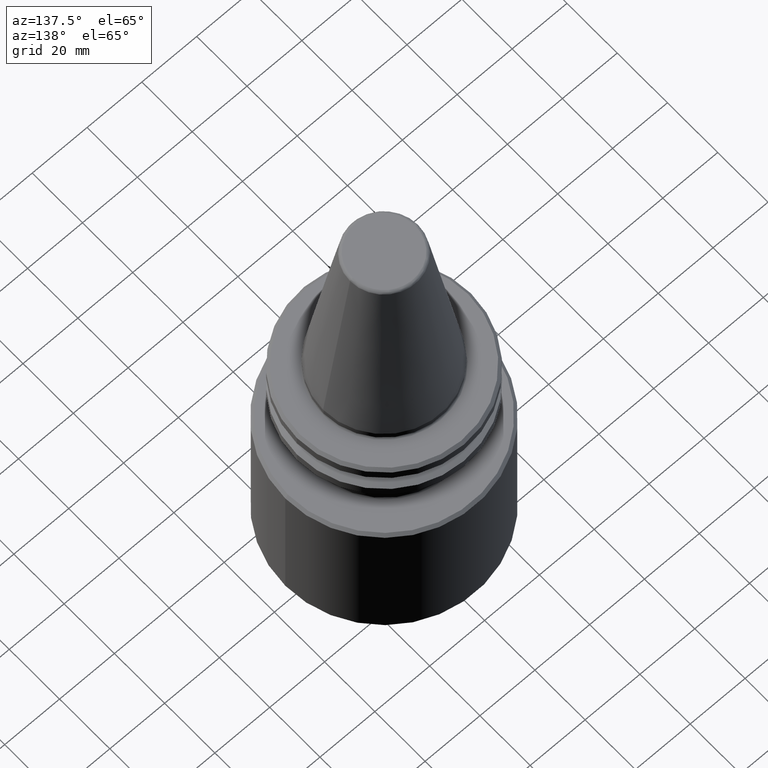
[diagram: clean part render]
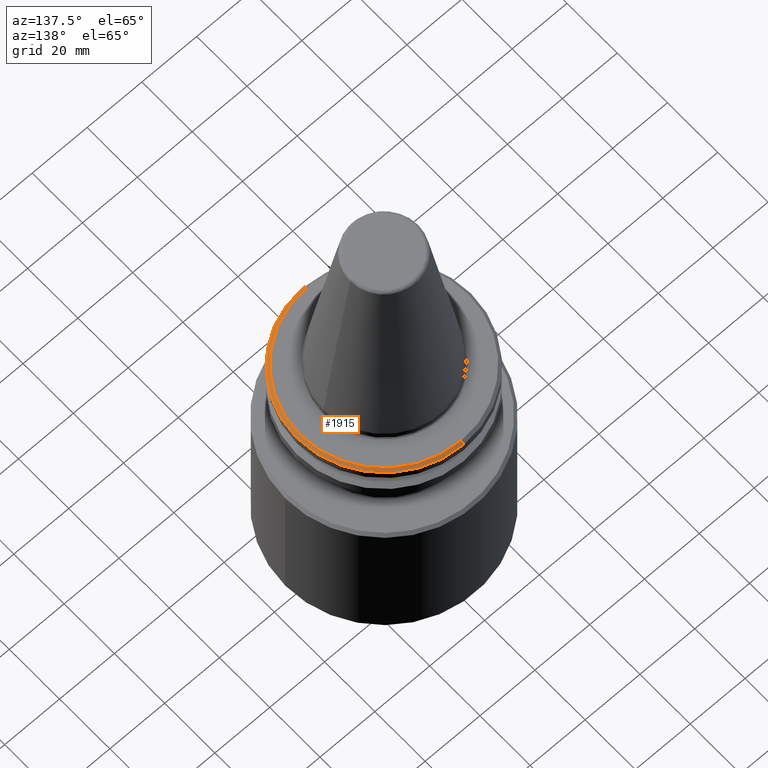
[diagram: same view with one face highlighted and labeled with its STEP entity id]
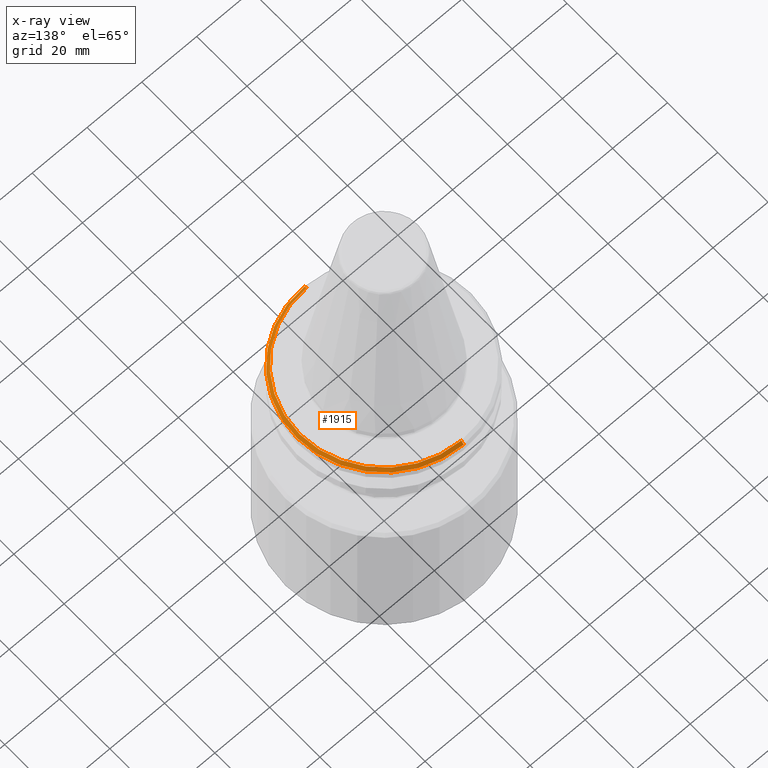
[diagram: x-ray of the same camera — body ghosted, the highlighted face saturated]
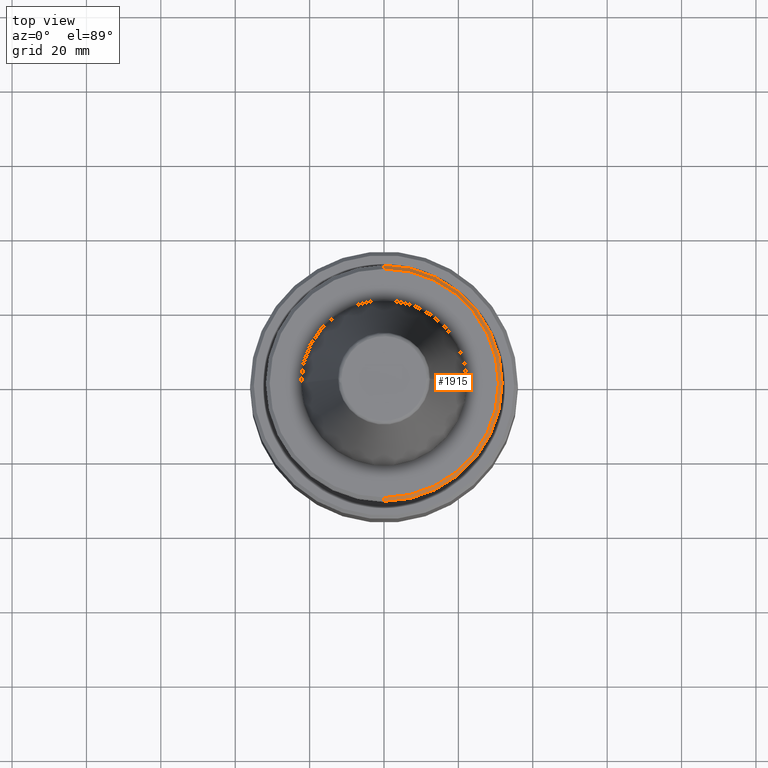
[diagram: same view with one face highlighted and labeled with its STEP entity id]
A machine part, auxiliary view. The second image highlights one B-rep face of the part: STEP entity #1915.
The next image is the same camera in x-ray: the body ghosted, the highlighted face saturated — about 0% of this face is hidden behind the body in this view.
A second angle (top view) of the same face is appended — the face is thin or edge-on in the first view.
In plain terms, the highlighted conical surface has half-angle 45 deg.
Its self-contained STEP definition (entity closure, byte-faithful):
#39 = CARTESIAN_POINT ( 'NONE',  ( 0.0000000000000000000, 31.63284271247462300, -4.082842712474622700 ) ) ;
#121 = CARTESIAN_POINT ( 'NONE',  ( 0.0000000000000000000, 0.0000000000000000000, -4.200000000000036600 ) ) ;
#169 = VERTEX_POINT ( 'NONE', #1641 ) ;
#227 = DIRECTION ( 'NONE',  ( -1.000000000000000000, 0.0000000000000000000, 0.0000000000000000000 ) ) ;
#252 = CIRCLE ( 'NONE', #1354, 30.74999999999994300 ) ;
#266 = ORIENTED_EDGE ( 'NONE', *, *, #1230, .T. ) ;
#294 = VECTOR ( 'NONE', #559, 999.9999999999998900 ) ;
#313 = DIRECTION ( 'NONE',  ( 0.0000000000000000000, 1.370982914612277200E-017, -1.000000000000000000 ) ) ;
#420 = VECTOR ( 'NONE', #970, 999.9999999999998900 ) ;
#461 = AXIS2_PLACEMENT_3D ( 'NONE', #1785, #313, #1270 ) ;
#462 = CIRCLE ( 'NONE', #1730, 31.74999999999994300 ) ;
#492 = DIRECTION ( 'NONE',  ( -1.000000000000000000, 0.0000000000000000000, 0.0000000000000000000 ) ) ;
#493 = DIRECTION ( 'NONE',  ( -0.0000000000000000000, -0.0000000000000000000, -1.000000000000000000 ) ) ;
#498 = CARTESIAN_POINT ( 'NONE',  ( 0.0000000000000000000, 0.0000000000000000000, -3.200000000000036100 ) ) ;
#559 = DIRECTION ( 'NONE',  ( 0.0000000000000000000, 0.7071067811865415800, -0.7071067811865535700 ) ) ;
#584 = EDGE_CURVE ( 'NONE', #933, #169, #462, .T. ) ;
#669 = CARTESIAN_POINT ( 'NONE',  ( 0.0000000000000000000, 31.75000000000003600, -4.200000000000036600 ) ) ;
#735 = VERTEX_POINT ( 'NONE', #1095 ) ;
#899 = EDGE_CURVE ( 'NONE', #1927, #169, #1558, .T. ) ;
#927 = CARTESIAN_POINT ( 'NONE',  ( 31.74999999999994300, 0.0000000000000000000, -4.200000000000036600 ) ) ;
#933 = VERTEX_POINT ( 'NONE', #927 ) ;
#969 = CARTESIAN_POINT ( 'NONE',  ( 3.873905957576372200E-015, -31.63284271247462300, -4.082842712474624500 ) ) ;
#970 = DIRECTION ( 'NONE',  ( 8.659560562354860100E-017, -0.7071067811865415800, -0.7071067811865535700 ) ) ;
#1003 = CONICAL_SURFACE ( 'NONE', #461, 31.63284271247462300, 0.7853981633974399500 ) ;
#1043 = CIRCLE ( 'NONE', #1110, 31.74999999999994300 ) ;
#1053 = VERTEX_POINT ( 'NONE', #669 ) ;
#1095 = CARTESIAN_POINT ( 'NONE',  ( 0.0000000000000000000, 30.74999999999994300, -3.200000000000036100 ) ) ;
#1110 = AXIS2_PLACEMENT_3D ( 'NONE', #121, #1462, #227 ) ;
#1173 = DIRECTION ( 'NONE',  ( -1.000000000000000000, 0.0000000000000000000, 0.0000000000000000000 ) ) ;
#1174 = DIRECTION ( 'NONE',  ( -0.0000000000000000000, -0.0000000000000000000, -1.000000000000000000 ) ) ;
#1178 = CARTESIAN_POINT ( 'NONE',  ( 0.0000000000000000000, 0.0000000000000000000, -4.200000000000036600 ) ) ;
#1230 = EDGE_CURVE ( 'NONE', #735, #1927, #252, .T. ) ;
#1270 = DIRECTION ( 'NONE',  ( 0.0000000000000000000, 1.000000000000000000, 2.741965829224553500E-017 ) ) ;
#1331 = ORIENTED_EDGE ( 'NONE', *, *, #1567, .F. ) ;
#1354 = AXIS2_PLACEMENT_3D ( 'NONE', #498, #493, #492 ) ;
#1400 = ORIENTED_EDGE ( 'NONE', *, *, #1553, .F. ) ;
#1462 = DIRECTION ( 'NONE',  ( -0.0000000000000000000, -0.0000000000000000000, -1.000000000000000000 ) ) ;
#1466 = LINE ( 'NONE', #39, #294 ) ;
#1497 = ORIENTED_EDGE ( 'NONE', *, *, #584, .F. ) ;
#1498 = EDGE_LOOP ( 'NONE', ( #266, #1510, #1497, #1400, #1331 ) ) ;
#1510 = ORIENTED_EDGE ( 'NONE', *, *, #899, .T. ) ;
#1553 = EDGE_CURVE ( 'NONE', #1053, #933, #1043, .T. ) ;
#1558 = LINE ( 'NONE', #969, #420 ) ;
#1567 = EDGE_CURVE ( 'NONE', #735, #1053, #1466, .T. ) ;
#1641 = CARTESIAN_POINT ( 'NONE',  ( 3.888253587292850400E-015, -31.75000000000003600, -4.200000000000036600 ) ) ;
#1730 = AXIS2_PLACEMENT_3D ( 'NONE', #1178, #1174, #1173 ) ;
#1767 = FACE_OUTER_BOUND ( 'NONE', #1498, .T. ) ;
#1785 = CARTESIAN_POINT ( 'NONE',  ( 0.0000000000000000000, 0.0000000000000000000, -4.082842712474623600 ) ) ;
#1915 = ADVANCED_FACE ( 'NONE', ( #1767 ), #1003, .T. ) ;
#1927 = VERTEX_POINT ( 'NONE', #1945 ) ;
#1945 = CARTESIAN_POINT ( 'NONE',  ( 3.827021247335477300E-015, -30.74999999999994300, -3.200000000000036100 ) ) ;